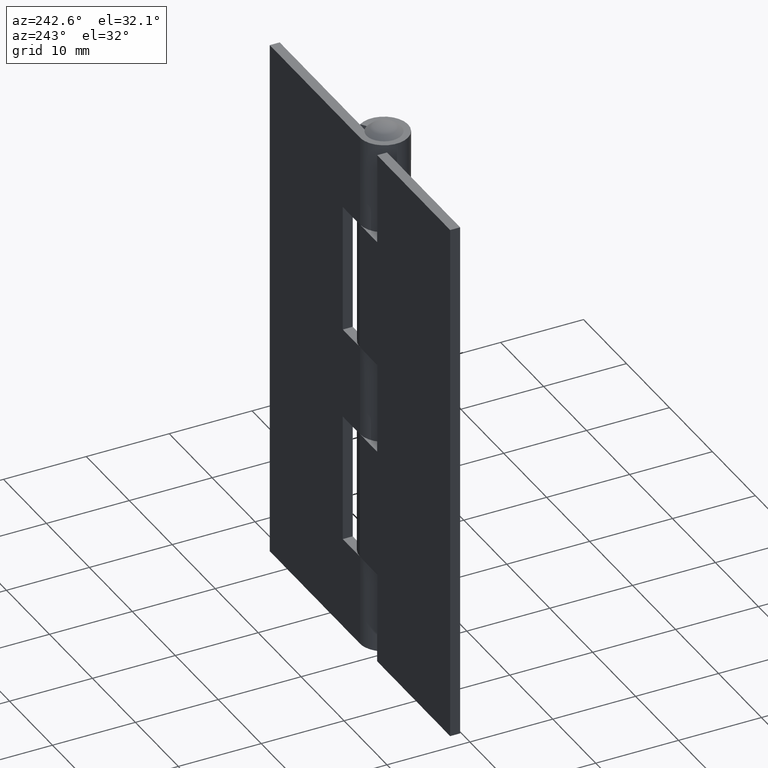
[diagram: clean part render]
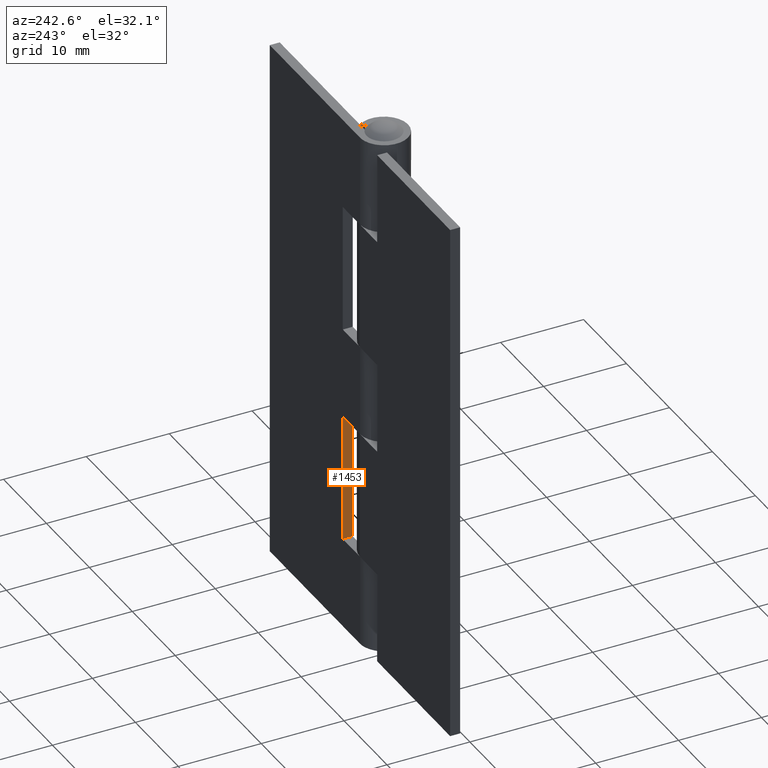
[diagram: same view with one face highlighted and labeled with its STEP entity id]
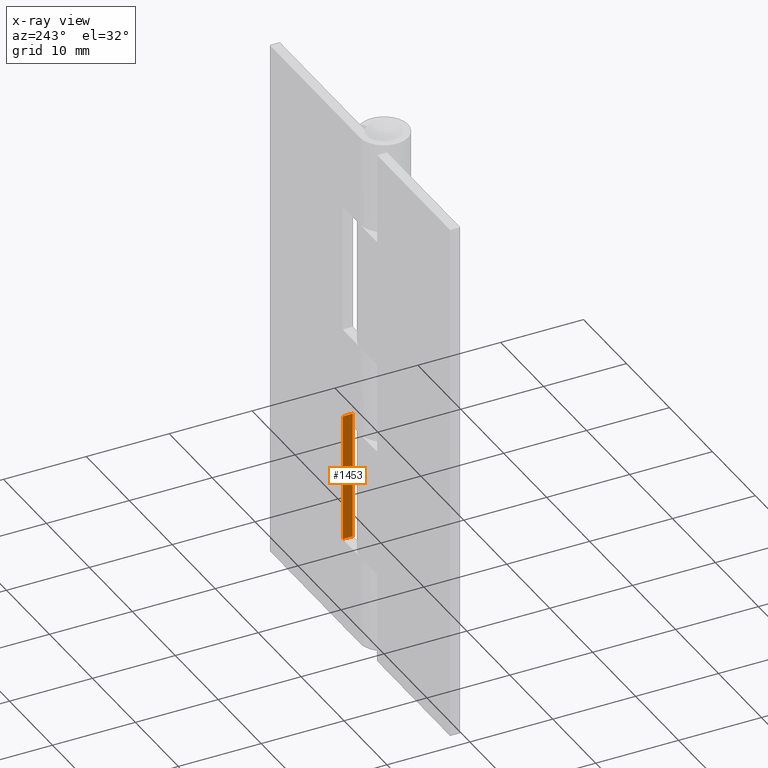
[diagram: x-ray of the same camera — body ghosted, the highlighted face saturated]
A machine part, auxiliary view. The second image highlights one B-rep face of the part: STEP entity #1453.
The next image is the same camera in x-ray: the body ghosted, the highlighted face saturated — about 0% of this face is hidden behind the body in this view.
In plain terms, the highlighted face is a freeform B-spline surface patch.
Its self-contained STEP definition (entity closure, byte-faithful):
#1117=CARTESIAN_POINT('',(4.0,1.700002000000000,26.500000000000000));
#1118=VERTEX_POINT('',#1117);
#1124=CARTESIAN_POINT('',(4.0,1.700002000000000,11.0));
#1125=VERTEX_POINT('',#1124);
#1126=CARTESIAN_POINT('',(4.0,1.700002000000000,26.500000000000000));
#1127=CARTESIAN_POINT('',(4.0,1.700002000000000,11.0));
#1128=QUASI_UNIFORM_CURVE('',1,(#1126,#1127),.UNSPECIFIED.,.F.,.U.);
#1129=EDGE_CURVE('',#1118,#1125,#1128,.T.);
#1373=CARTESIAN_POINT('',(4.0,2.900001999999955,26.500000000000000));
#1374=VERTEX_POINT('',#1373);
#1382=CARTESIAN_POINT('',(4.0,1.700002000000000,26.500000000000000));
#1383=CARTESIAN_POINT('',(4.0,2.900001999999955,26.500000000000000));
#1384=QUASI_UNIFORM_CURVE('',1,(#1382,#1383),.UNSPECIFIED.,.F.,.U.);
#1385=EDGE_CURVE('',#1118,#1374,#1384,.T.);
#1432=CARTESIAN_POINT('',(4.0,1.640062002325835,10.225775030042010));
#1433=CARTESIAN_POINT('',(4.0,1.640062002325835,27.274225385700401));
#1434=CARTESIAN_POINT('',(4.0,2.959942029860629,10.225775030042010));
#1435=CARTESIAN_POINT('',(4.0,2.959942029860629,27.274225385700401));
#1436=B_SPLINE_SURFACE_WITH_KNOTS('',1,1,((#1432,#1434),(#1433,#1435)),.UNSPECIFIED.,.F.,.F.,.U.,(2,2),(2,2),(0.0,17.048450355658389),(0.041708334948495,0.958291687403247),.UNSPECIFIED.);
#1437=ORIENTED_EDGE('',*,*,#1385,.T.);
#1438=CARTESIAN_POINT('',(4.0,2.900001999999955,11.0));
#1439=VERTEX_POINT('',#1438);
#1440=CARTESIAN_POINT('',(4.0,2.900001999999955,11.0));
#1441=CARTESIAN_POINT('',(4.0,2.900001999999955,26.500000000000000));
#1442=QUASI_UNIFORM_CURVE('',1,(#1440,#1441),.UNSPECIFIED.,.F.,.U.);
#1443=EDGE_CURVE('',#1439,#1374,#1442,.T.);
#1444=ORIENTED_EDGE('',*,*,#1443,.F.);
#1445=CARTESIAN_POINT('',(4.0,1.700002000000000,11.0));
#1446=CARTESIAN_POINT('',(4.0,2.900001999999955,11.0));
#1447=QUASI_UNIFORM_CURVE('',1,(#1445,#1446),.UNSPECIFIED.,.F.,.U.);
#1448=EDGE_CURVE('',#1125,#1439,#1447,.T.);
#1449=ORIENTED_EDGE('',*,*,#1448,.F.);
#1450=ORIENTED_EDGE('',*,*,#1129,.F.);
#1451=EDGE_LOOP('',(#1437,#1444,#1449,#1450));
#1452=FACE_OUTER_BOUND('',#1451,.T.);
#1453=ADVANCED_FACE('',(#1452),#1436,.T.);